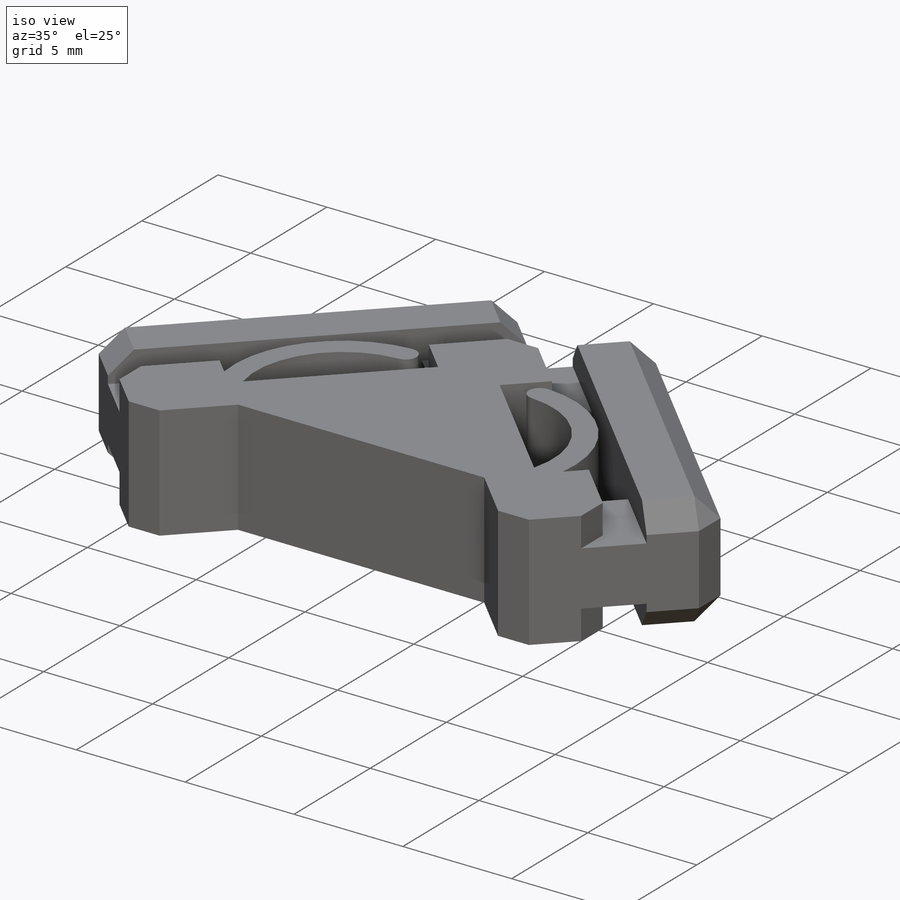
[diagram: iso view]
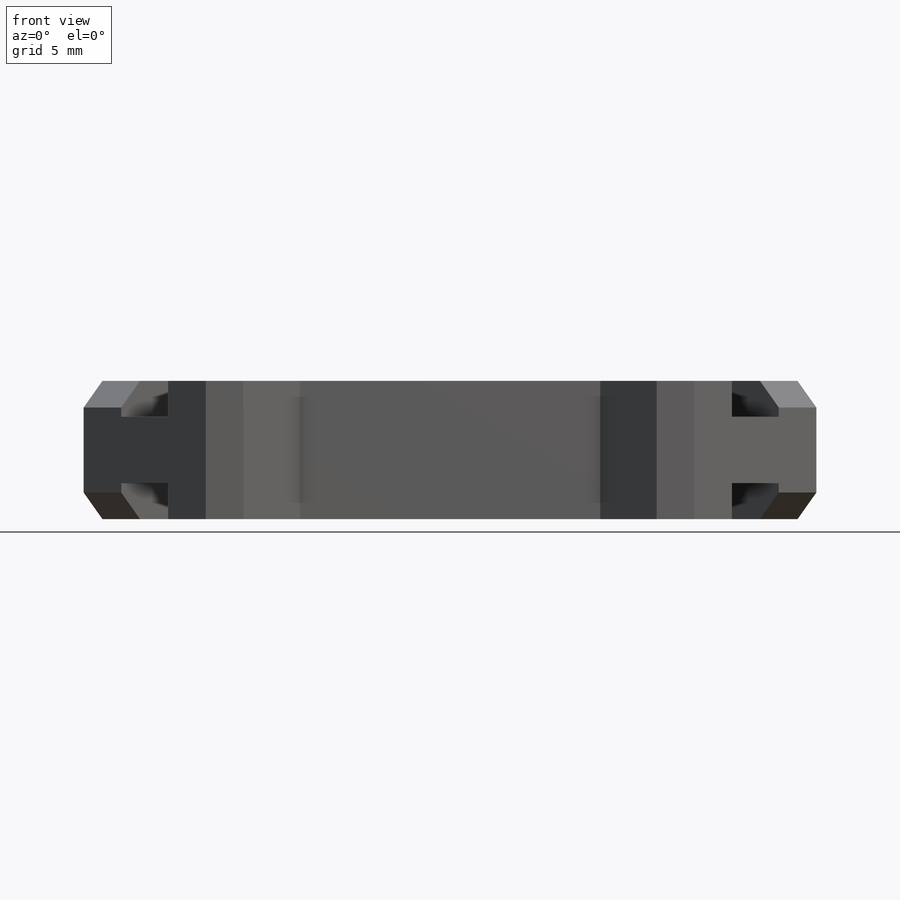
[diagram: front view]
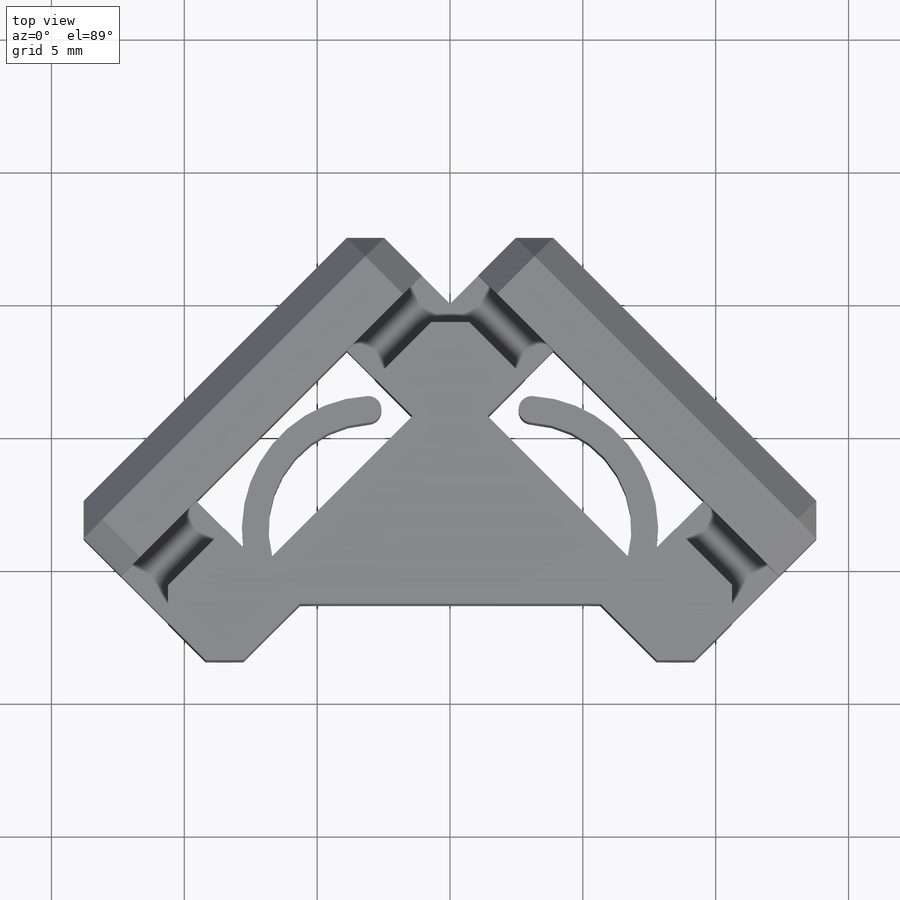
[diagram: top view]
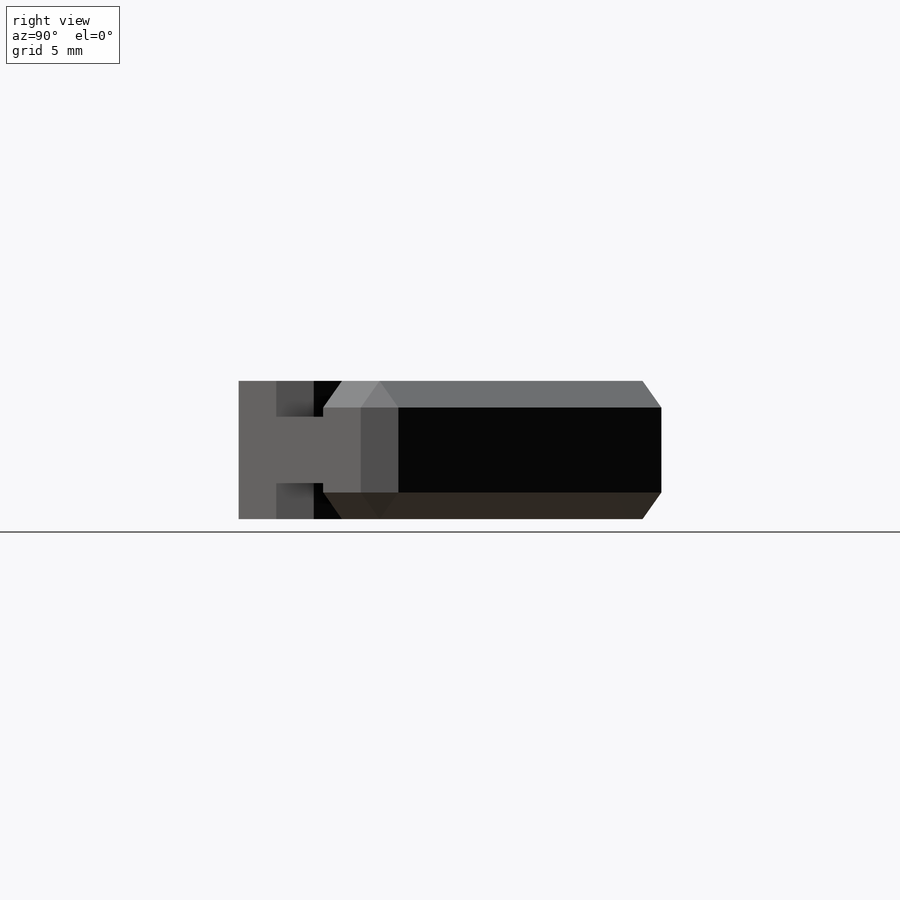
[diagram: right view]
SOLIDWORKS PART (.sldprt)
format: sldprt  version: not decoded by parser v0  size: 254,464 bytes
history: native  units: mm
features: sketch x4, extrude x4, mirror x2, chamfer x2, material x1, plane x1 (+12 scaffold rows collapsed)
feature tree (26):
  scaffold x12  (default folders/planes/origin — collapsed)
  material  "Material <not specified>"
  sketch  "Sketch1"  dims[c1.D1=~8.358834mm c2.D1=135.0deg c2.D2=2.0mm c2.D3=8.0mm c2.D4=4.0mm c2.D5=16.0mm]
  extrude  "Boss-Extrude1"  Depth=5.2mm
  plane  "Plane1"
  sketch  "Sketch2"  dims[D1=2.5mm D2=1.5mm D3=3.0mm]
  extrude  "Boss-Extrude2"  Depth=4mm
  mirror  "Mirror1"
  sketch  "Sketch3"
  extrude  "Boss-Extrude3"  Depth=8mm
  sketch  "Sketch4"  dims[c1.D1=5.0mm c1.D3=~4.329088mm c1.D2=0.5mm c2.D3=1.0mm c2.D4=2.0mm]
  extrude  "Boss-Extrude4"  Depth=5.2mm
  chamfer  "Chamfer1"  Distance=1mm Angle=45deg
  mirror  "Mirror2"
  chamfer  "Chamfer2"  Distance=1mm Angle=45deg
decode coverage: 9 of 12 modeling features carry decoded parameters
note: ~ marks probable driven/reference dimensions
note: suppression state not decoded; provenance and decode notes live in map.json
